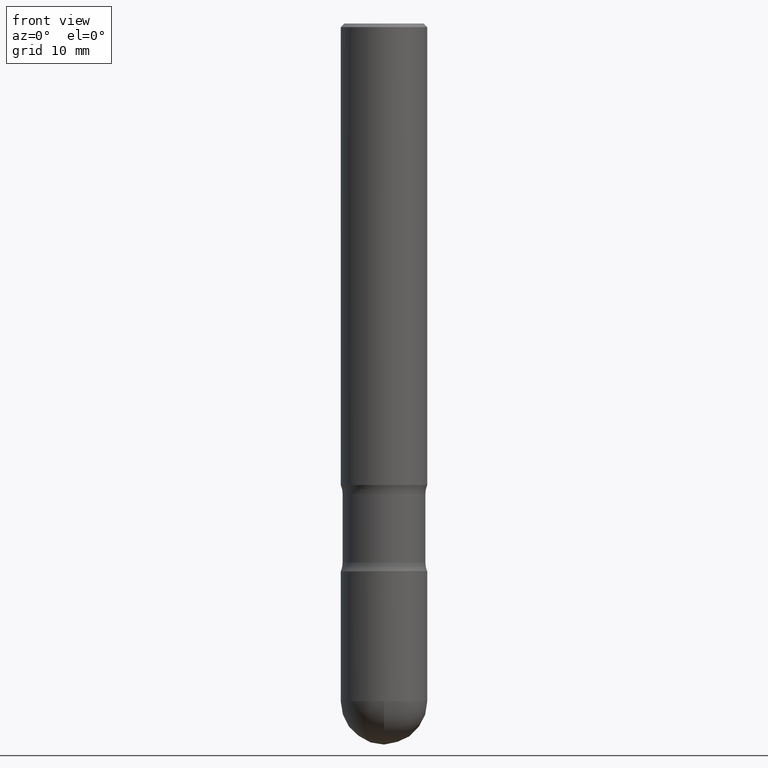
[diagram: clean part render]
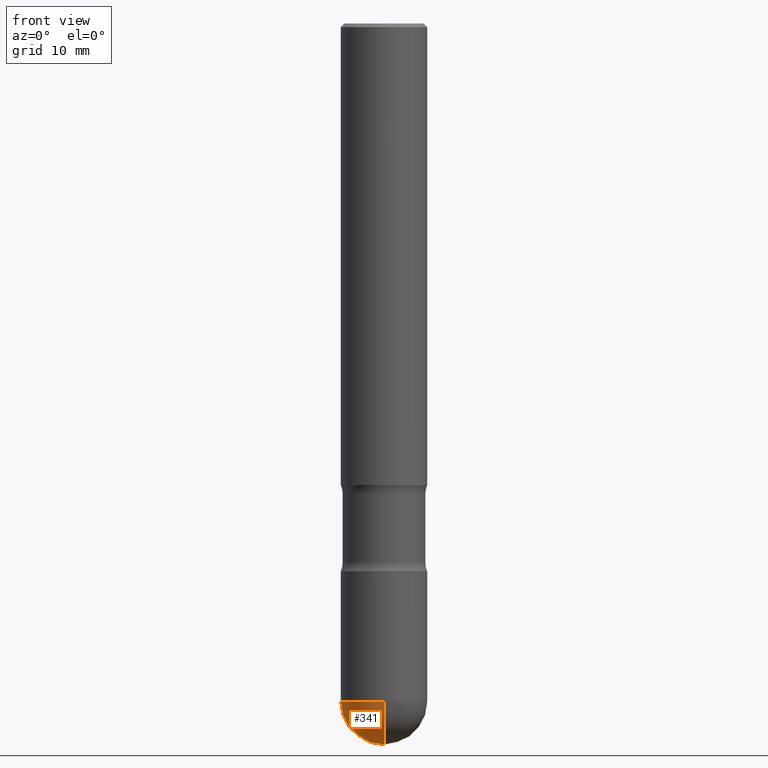
[diagram: same view with one face highlighted and labeled with its STEP entity id]
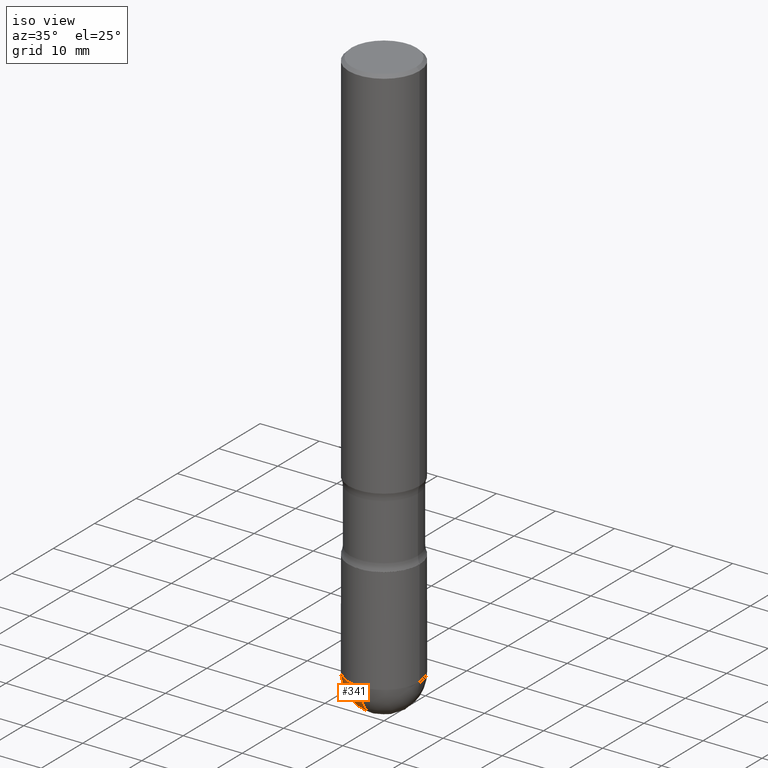
[diagram: same view with one face highlighted and labeled with its STEP entity id]
A machine part, front view. The second image highlights one B-rep face of the part: STEP entity #341.
A second angle (iso view) of the same face is appended — the face is thin or edge-on in the first view.
In plain terms, the highlighted spherical surface has radius 5.9995 mm.
Its self-contained STEP definition (entity closure, byte-faithful):
#4 = ORIENTED_EDGE ( 'NONE', *, *, #413, .F. ) ;
#9 = ORIENTED_EDGE ( 'NONE', *, *, #503, .F. ) ;
#10 = EDGE_CURVE ( 'NONE', #262, #236, #176, .T. ) ;
#54 = DIRECTION ( 'NONE',  ( -2.445468806185136597E-29, 3.491481338843145583E-15, 1.000000000000000000 ) ) ;
#59 = CARTESIAN_POINT ( 'NONE',  ( 1.649375784469583694E-15, 0.2361999999999866706, -3.700800000000000978 ) ) ;
#75 = AXIS2_PLACEMENT_3D ( 'NONE', #471, #420, #552 ) ;
#79 = DIRECTION ( 'NONE',  ( -1.000000000000000000, 6.982962677686265922E-15, -4.883557194083112340E-29 ) ) ;
#129 = EDGE_CURVE ( 'NONE', #195, #144, #505, .T. ) ;
#134 = CARTESIAN_POINT ( 'NONE',  ( -0.2361999999999992716, -1.000576578450629382E-14, -3.700800000000000090 ) ) ;
#141 = AXIS2_PLACEMENT_3D ( 'NONE', #331, #464, #294 ) ;
#144 = VERTEX_POINT ( 'NONE', #134 ) ;
#156 = CARTESIAN_POINT ( 'NONE',  ( 9.029991930179535488E-29, -1.295020029618657502E-14, -3.700800000000000090 ) ) ;
#168 = SPHERICAL_SURFACE ( 'NONE', #355, 0.2361999999999999655 ) ;
#173 = CARTESIAN_POINT ( 'NONE',  ( 9.050190957929953666E-29, -1.292127413879071357E-14, -3.700800000000000090 ) ) ;
#176 = CIRCLE ( 'NONE', #495, 0.2361999999999999655 ) ;
#188 = CIRCLE ( 'NONE', #141, 0.2361999999999999655 ) ;
#195 = VERTEX_POINT ( 'NONE', #59 ) ;
#231 = ORIENTED_EDGE ( 'NONE', *, *, #129, .F. ) ;
#236 = VERTEX_POINT ( 'NONE', #563 ) ;
#242 = DIRECTION ( 'NONE',  ( -1.000000000000000000, 7.105427357601001070E-15, -4.926315508542082329E-29 ) ) ;
#253 = AXIS2_PLACEMENT_3D ( 'NONE', #173, #54, #481 ) ;
#262 = VERTEX_POINT ( 'NONE', #528 ) ;
#294 = DIRECTION ( 'NONE',  ( 6.982962677686265922E-15, 1.000000000000000000, 0.000000000000000000 ) ) ;
#297 = DIRECTION ( 'NONE',  ( 6.982962677686265922E-15, 1.000000000000000000, -4.626330217890370125E-15 ) ) ;
#311 = EDGE_LOOP ( 'NONE', ( #4, #361, #9, #231 ) ) ;
#331 = CARTESIAN_POINT ( 'NONE',  ( 9.029991930179535488E-29, -1.295020029618657502E-14, -3.700800000000000090 ) ) ;
#341 = ADVANCED_FACE ( 'NONE', ( #426 ), #168, .T. ) ;
#355 = AXIS2_PLACEMENT_3D ( 'NONE', #475, #79, #297 ) ;
#361 = ORIENTED_EDGE ( 'NONE', *, *, #10, .T. ) ;
#413 = EDGE_CURVE ( 'NONE', #262, #195, #188, .T. ) ;
#420 = DIRECTION ( 'NONE',  ( -2.445468806185136597E-29, 3.491481338843145583E-15, 1.000000000000000000 ) ) ;
#426 = FACE_OUTER_BOUND ( 'NONE', #311, .T. ) ;
#464 = DIRECTION ( 'NONE',  ( 1.000000000000000000, -6.982962677686265922E-15, 4.883557194083112340E-29 ) ) ;
#471 = CARTESIAN_POINT ( 'NONE',  ( 9.050190957929953666E-29, -1.292127413879071357E-14, -3.700800000000000090 ) ) ;
#475 = CARTESIAN_POINT ( 'NONE',  ( 9.029991930179535488E-29, -1.295020029618657502E-14, -3.700800000000000090 ) ) ;
#481 = DIRECTION ( 'NONE',  ( 1.000000000000000000, -6.982962677686269866E-15, 0.000000000000000000 ) ) ;
#495 = AXIS2_PLACEMENT_3D ( 'NONE', #156, #242, #499 ) ;
#499 = DIRECTION ( 'NONE',  ( -7.105427357601001070E-15, -1.000000000000000000, 0.000000000000000000 ) ) ;
#503 = EDGE_CURVE ( 'NONE', #144, #236, #522, .T. ) ;
#505 = CIRCLE ( 'NONE', #253, 0.2361999999999992716 ) ;
#522 = CIRCLE ( 'NONE', #75, 0.2361999999999992716 ) ;
#528 = CARTESIAN_POINT ( 'NONE',  ( 9.617711176075674020E-29, -1.376042510972339572E-14, -3.937000000000000277 ) ) ;
#552 = DIRECTION ( 'NONE',  ( 1.000000000000000000, -6.982962677686269866E-15, 0.000000000000000000 ) ) ;
#563 = CARTESIAN_POINT ( 'NONE',  ( -1.678301941865263506E-15, -0.2362000000000125666, -3.700799999999998757 ) ) ;